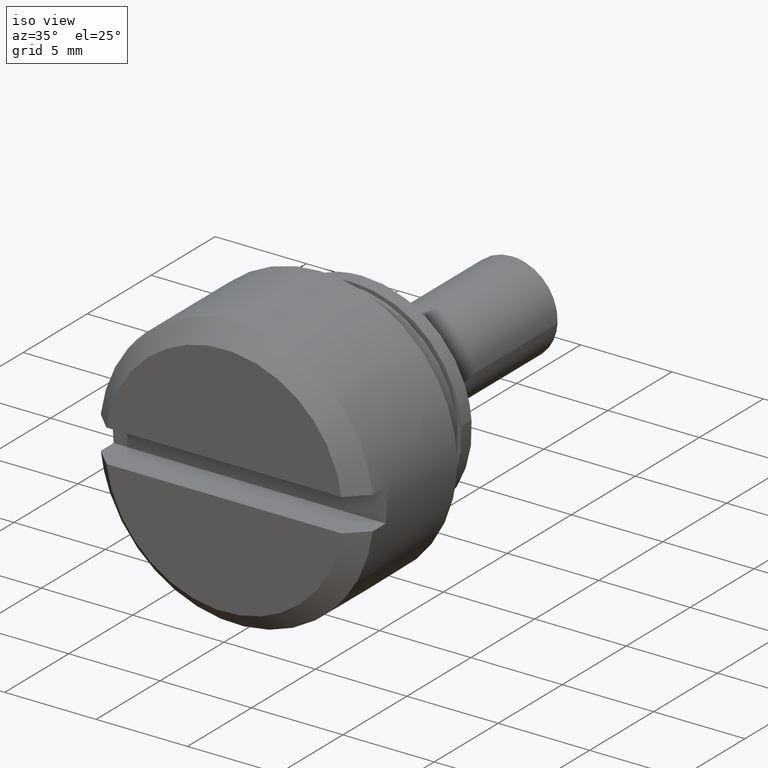
[diagram: clean part render]
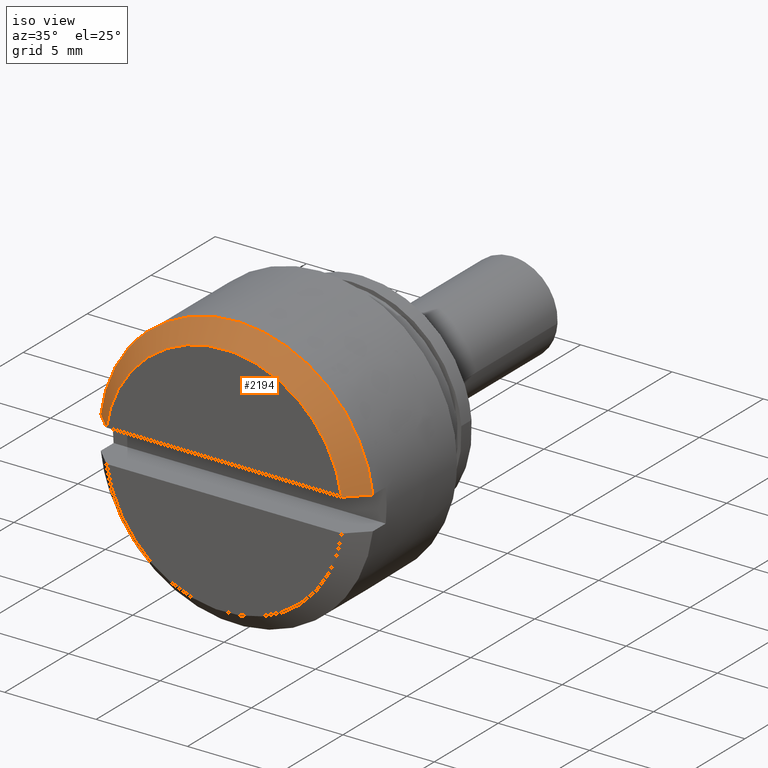
[diagram: same view with one face highlighted and labeled with its STEP entity id]
A machine part, iso view. The second image highlights one B-rep face of the part: STEP entity #2194.
In plain terms, the highlighted face is a freeform B-spline surface patch.
Its self-contained STEP definition (entity closure, byte-faithful):
#1804=CARTESIAN_POINT('',(-9.0,7.445804187594519,0.900000000000000));
#1805=VERTEX_POINT('',#1804);
#1811=CARTESIAN_POINT('',(-9.0,4.969650356903044,5.617167910088982));
#1812=VERTEX_POINT('',#1811);
#1813=CARTESIAN_POINT('',(-9.0,7.445804187594514,0.899999999999999));
#1814=CARTESIAN_POINT('',(-9.0,7.103855279543601,3.728982901676511));
#1815=CARTESIAN_POINT('',(-9.0,4.969650356903044,5.617167910088984));
#1823=(BOUNDED_CURVE()B_SPLINE_CURVE(2,(#1813,#1814,#1815),.UNSPECIFIED.,.F.,.U.)B_SPLINE_CURVE_WITH_KNOTS((3,3),(0.0,0.250310217785027),.UNSPECIFIED.)CURVE()GEOMETRIC_REPRESENTATION_ITEM()RATIONAL_B_SPLINE_CURVE((1.0,0.874009594574082,0.874165932432106))REPRESENTATION_ITEM(''));
#1824=EDGE_CURVE('',#1805,#1812,#1823,.T.);
#1884=CARTESIAN_POINT('',(-9.0,-7.445804187594519,0.900000000000000));
#1885=VERTEX_POINT('',#1884);
#1886=CARTESIAN_POINT('',(-9.0,4.969650356903044,5.617167910088984));
#1887=CARTESIAN_POINT('',(-9.0,2.841495808015802,7.499999999999999));
#1888=CARTESIAN_POINT('',(-9.0,0.0,7.500000000000000));
#1889=CARTESIAN_POINT('',(-9.0,-6.648039453209386,7.499999999999999));
#1890=CARTESIAN_POINT('',(-9.0,-7.445804187594514,0.900000000000001));
#1898=(BOUNDED_CURVE()B_SPLINE_CURVE(2,(#1886,#1887,#1888,#1889,#1890),.UNSPECIFIED.,.F.,.U.)B_SPLINE_CURVE_WITH_KNOTS((3,2,3),(0.250310217785027,0.500000000000000,1.0),.UNSPECIFIED.)CURVE()GEOMETRIC_REPRESENTATION_ITEM()RATIONAL_B_SPLINE_CURVE((0.874165932432106,0.874321882780706,1.0,0.748331477354788,1.0))REPRESENTATION_ITEM(''));
#1899=EDGE_CURVE('',#1812,#1885,#1898,.T.);
#2027=CARTESIAN_POINT('',(-10.0,-6.437390775772430,0.900000000000000));
#2028=VERTEX_POINT('',#2027);
#2029=CARTESIAN_POINT('',(-10.0,-6.437390775772430,0.900000000000000));
#2030=CARTESIAN_POINT('',(-9.666890425772754,-6.773750161947045,0.900000000000000));
#2031=CARTESIAN_POINT('',(-9.333519248877918,-7.109850490492688,0.900000000000000));
#2032=CARTESIAN_POINT('',(-9.0,-7.445804187594519,0.900000000000000));
#2033=B_SPLINE_CURVE_WITH_KNOTS('',3,(#2029,#2030,#2031,#2032),.UNSPECIFIED.,.F.,.U.,(4,4),(0.929162089459682,1.0),.UNSPECIFIED.);
#2034=EDGE_CURVE('',#2028,#1885,#2033,.T.);
#2036=CARTESIAN_POINT('',(-10.0,6.437390775772430,0.900000000000000));
#2037=VERTEX_POINT('',#2036);
#2043=CARTESIAN_POINT('',(-9.0,7.445804187594519,0.900000000000000));
#2044=CARTESIAN_POINT('',(-9.333519141448813,7.109850583502705,0.900000000000000));
#2045=CARTESIAN_POINT('',(-9.666890308170464,6.773750285482524,0.900000000000000));
#2046=CARTESIAN_POINT('',(-10.0,6.437390775772430,0.900000000000000));
#2047=B_SPLINE_CURVE_WITH_KNOTS('',3,(#2043,#2044,#2045,#2046),.UNSPECIFIED.,.F.,.U.,(4,4),(0.0,0.070808166643105),.UNSPECIFIED.);
#2048=EDGE_CURVE('',#1805,#2037,#2047,.T.);
#2155=CARTESIAN_POINT('',(-10.025000000000000,-6.454071600112191,0.520177643334644));
#2156=CARTESIAN_POINT('',(-8.974374999999998,-7.501300785419975,0.604580984883441));
#2157=CARTESIAN_POINT('',(-10.025000000000002,-5.964737335158585,6.591561953803929));
#2158=CARTESIAN_POINT('',(-8.974374999999998,-6.932567785004301,7.661100143412468));
#2159=CARTESIAN_POINT('',(-10.025000000000000,0.125195761933141,6.473789541002542));
#2160=CARTESIAN_POINT('',(-8.974374999999998,0.145509861914765,7.524218133514640));
#2161=CARTESIAN_POINT('',(-10.025000000000002,6.215128859024867,6.356017128201156));
#2162=CARTESIAN_POINT('',(-8.974374999999998,7.223587508833831,7.387336123616811));
#2163=CARTESIAN_POINT('',(-10.025000000000000,6.469357636956135,0.270253150133828));
#2164=CARTESIAN_POINT('',(-8.974374999999998,7.519067114535607,0.314104071502067));
#2172=(BOUNDED_SURFACE()B_SPLINE_SURFACE(1,2,((#2155,#2157,#2159,#2161,#2163),(#2156,#2158,#2160,#2162,#2164)),.UNSPECIFIED.,.F.,.F.,.U.)B_SPLINE_SURFACE_WITH_KNOTS((2,2),(3,2,3),(0.0,1.0),(0.0,11.933619185760000,23.867238371519999),.UNSPECIFIED.)GEOMETRIC_REPRESENTATION_ITEM()RATIONAL_B_SPLINE_SURFACE(((1.0,0.728370969882400,1.0,0.728370969882400,1.0),(1.0,0.728370969882400,1.0,0.728370969882400,1.0)))REPRESENTATION_ITEM('')SURFACE());
#2173=ORIENTED_EDGE('',*,*,#1899,.F.);
#2174=ORIENTED_EDGE('',*,*,#1824,.F.);
#2175=ORIENTED_EDGE('',*,*,#2048,.T.);
#2176=CARTESIAN_POINT('',(-10.0,-6.437390775772433,0.899999999999999));
#2177=CARTESIAN_POINT('',(-10.000000000000002,-5.654464870610921,6.499999999999999));
#2178=CARTESIAN_POINT('',(-10.0,0.0,6.500000000000000));
#2179=CARTESIAN_POINT('',(-10.000000000000002,5.654464870610919,6.499999999999999));
#2180=CARTESIAN_POINT('',(-10.0,6.437390775772432,0.900000000000001));
#2188=(BOUNDED_CURVE()B_SPLINE_CURVE(2,(#2176,#2177,#2178,#2179,#2180),.UNSPECIFIED.,.F.,.U.)B_SPLINE_CURVE_WITH_KNOTS((3,2,3),(0.0,0.500000000000000,1.0),.UNSPECIFIED.)CURVE()GEOMETRIC_REPRESENTATION_ITEM()RATIONAL_B_SPLINE_CURVE((1.0,0.754473836014722,1.0,0.754473836014722,1.0))REPRESENTATION_ITEM(''));
#2189=EDGE_CURVE('',#2028,#2037,#2188,.T.);
#2190=ORIENTED_EDGE('',*,*,#2189,.F.);
#2191=ORIENTED_EDGE('',*,*,#2034,.T.);
#2192=EDGE_LOOP('',(#2173,#2174,#2175,#2190,#2191));
#2193=FACE_OUTER_BOUND('',#2192,.T.);
#2194=ADVANCED_FACE('',(#2193),#2172,.T.);